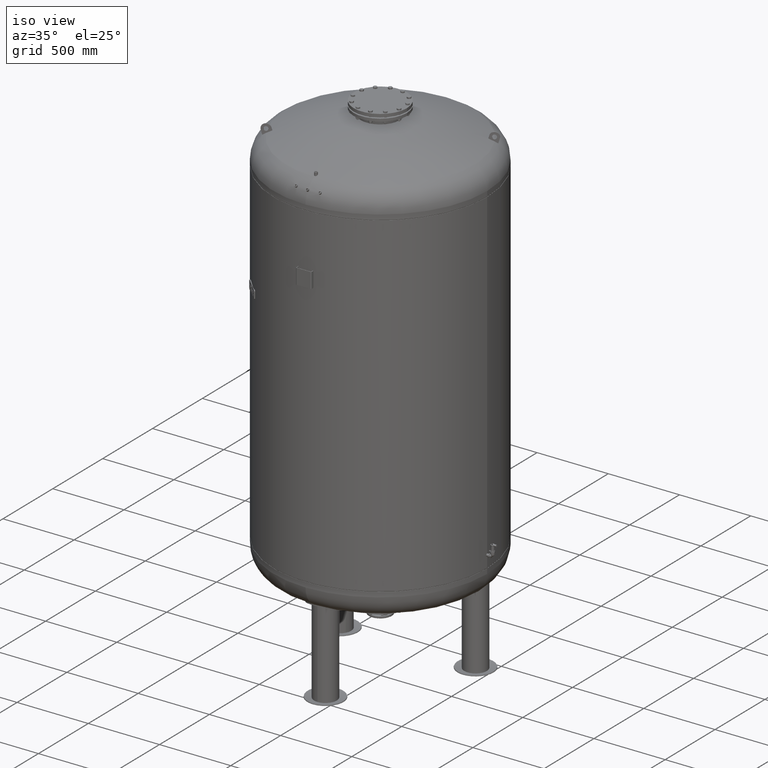
[diagram: clean part render]
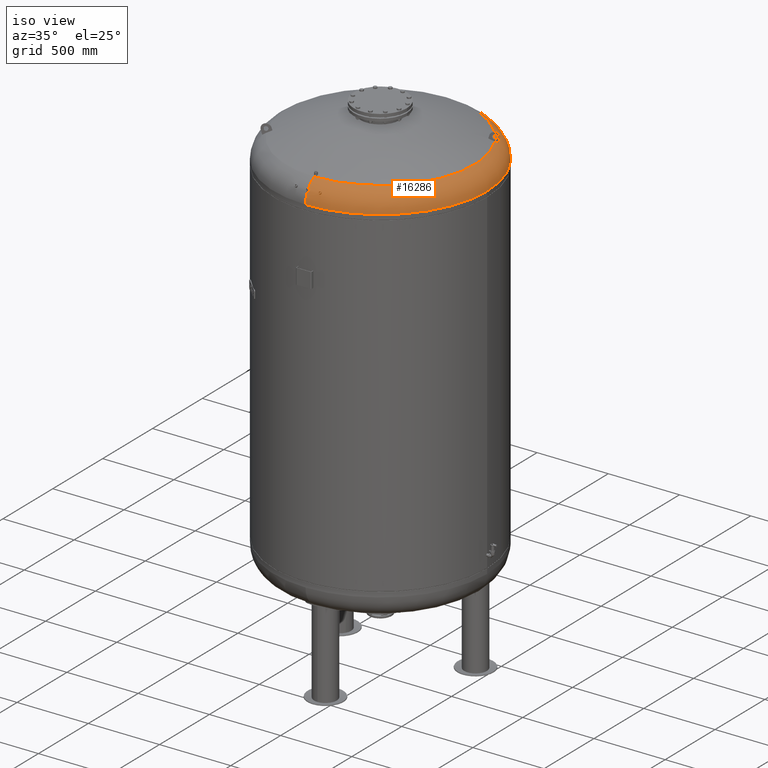
[diagram: same view with one face highlighted and labeled with its STEP entity id]
A machine part, iso view. The second image highlights one B-rep face of the part: STEP entity #16286.
In plain terms, the highlighted toroidal blend (fillet) surface has major radius 591 mm and minor (blend) radius 159 mm.
Its self-contained STEP definition (entity closure, byte-faithful):
#15197=CARTESIAN_POINT('',(3.122770E-014,-731.140193061976330,3288.873758403027800));
#15198=VERTEX_POINT('',#15197);
#15214=CARTESIAN_POINT('',(-4.552190E-014,-721.312989634743420,3304.864059968686900));
#15215=VERTEX_POINT('',#15214);
#15392=CARTESIAN_POINT('',(80.324619526775507,-725.631664467896030,3290.848132170746300));
#15393=VERTEX_POINT('',#15392);
#15409=CARTESIAN_POINT('',(85.635383923202426,-715.574285877654120,3305.762554782133100));
#15410=VERTEX_POINT('',#15409);
#15417=CARTESIAN_POINT('',(82.418225282518961,-715.625413797499390,3306.218126071017700));
#15418=VERTEX_POINT('',#15417);
#15419=CARTESIAN_POINT('',(85.635383923202426,-715.574285877654120,3305.762554782133100));
#15420=CARTESIAN_POINT('',(84.592095150121978,-715.479768309782000,3306.069582553987900));
#15421=CARTESIAN_POINT('',(83.502717674649233,-715.496735823227250,3306.223376532035200));
#15422=CARTESIAN_POINT('',(82.418225282518975,-715.625413797499500,3306.218126071017200));
#15423=B_SPLINE_CURVE_WITH_KNOTS('',3,(#15419,#15420,#15421,#15422),.UNSPECIFIED.,.F.,.U.,(4,4),(55.416614716824512,58.692951700855467),.UNSPECIFIED.);
#15424=EDGE_CURVE('',#15410,#15418,#15423,.T.);
#15426=CARTESIAN_POINT('',(82.418225282518961,-715.625413797499390,3306.218126071017200));
#15427=CARTESIAN_POINT('',(81.211133854247237,-715.768638481119750,3306.212282059076600));
#15428=CARTESIAN_POINT('',(80.033329142601900,-716.047532308479730,3306.009588538828200));
#15429=CARTESIAN_POINT('',(77.853673223190242,-716.844704672272770,3305.227415632584800));
#15430=CARTESIAN_POINT('',(76.876746910767665,-717.358082565862220,3304.650377868647400));
#15431=CARTESIAN_POINT('',(75.331081534016363,-718.495059648504930,3303.244562110200600));
#15432=CARTESIAN_POINT('',(74.751283283861014,-719.098150574058420,3302.448759468116400));
#15433=CARTESIAN_POINT('',(74.001691080207181,-720.301731486084010,3300.757779434901700));
#15434=CARTESIAN_POINT('',(73.810291241882453,-720.890668086018310,3299.885934186303500));
#15435=CARTESIAN_POINT('',(73.779981261854303,-722.027310048809680,3298.109997290660900));
#15436=CARTESIAN_POINT('',(73.936507986794140,-722.568132741438150,3297.217941801339300));
#15437=CARTESIAN_POINT('',(74.606133414307180,-723.598107309736970,3295.419907378629400));
#15438=CARTESIAN_POINT('',(75.141752945350873,-724.072117933369780,3294.531807235835000));
#15439=CARTESIAN_POINT('',(76.601439139230166,-724.890507929086990,3292.872002348968600));
#15440=CARTESIAN_POINT('',(77.541017307508142,-725.212857365886750,3292.132453735247100));
#15441=CARTESIAN_POINT('',(79.156540886265830,-725.520417990257780,3291.277320264957300));
#15442=CARTESIAN_POINT('',(79.731089469051867,-725.592267128844470,3291.036580947696600));
#15443=CARTESIAN_POINT('',(80.324619526775507,-725.631664467896030,3290.848132170746300));
#15444=B_SPLINE_CURVE_WITH_KNOTS('',3,(#15426,#15427,#15428,#15429,#15430,#15431,#15432,#15433,#15434,#15435,#15436,#15437,#15438,#15439,#15440,#15441,#15442,#15443),.UNSPECIFIED.,.F.,.U.,(4,2,2,2,2,2,2,2,4),(0.0,3.646718334081638,7.346398987803632,10.780619860109260,13.964018717005052,17.104140581734100,20.494714130028250,24.174081569606379,26.055942591926314),.UNSPECIFIED.);
#15445=EDGE_CURVE('',#15418,#15393,#15444,.T.);
#15983=CARTESIAN_POINT('',(750.0,-5.423428E-014,3213.762332584101800));
#15984=VERTEX_POINT('',#15983);
#16008=CARTESIAN_POINT('',(1.267436E-013,750.0,3213.762332584101800));
#16009=VERTEX_POINT('',#16008);
#16017=CARTESIAN_POINT('',(1.459986E-014,-5.423428E-014,3213.762332584101800));
#16018=DIRECTION('',(0.0,0.0,-1.0));
#16019=DIRECTION('',(1.0,0.0,0.0));
#16020=AXIS2_PLACEMENT_3D('',#16017,#16018,#16019);
#16021=CIRCLE('',#16020,750.0);
#16022=EDGE_CURVE('',#16009,#15984,#16021,.T.);
#16132=CARTESIAN_POINT('',(3.489809E-014,-5.423428E-014,3213.762332584101800));
#16133=DIRECTION('',(4.945121E-017,-1.836970E-016,-1.0));
#16134=DIRECTION('',(0.0,-1.0,0.0));
#16135=AXIS2_PLACEMENT_3D('',#16132,#16133,#16134);
#16136=TOROIDAL_SURFACE('',#16135,591.0,159.0);
#16137=CARTESIAN_POINT('',(3.489809E-014,-750.0,3213.762332584101800));
#16138=VERTEX_POINT('',#16137);
#16139=CARTESIAN_POINT('',(3.489809E-014,-591.0,3213.762332584101800));
#16140=DIRECTION('',(-1.0,0.0,0.0));
#16141=DIRECTION('',(0.0,-1.0,0.0));
#16142=AXIS2_PLACEMENT_3D('',#16139,#16140,#16141);
#16143=CIRCLE('',#16142,159.0);
#16144=EDGE_CURVE('',#16138,#15198,#16143,.T.);
#16145=ORIENTED_EDGE('',*,*,#16144,.F.);
#16146=CARTESIAN_POINT('',(1.459986E-014,-5.423428E-014,3213.762332584101800));
#16147=DIRECTION('',(0.0,0.0,-1.0));
#16148=DIRECTION('',(1.0,0.0,0.0));
#16149=AXIS2_PLACEMENT_3D('',#16146,#16147,#16148);
#16150=CIRCLE('',#16149,750.0);
#16151=EDGE_CURVE('',#15984,#16138,#16150,.T.);
#16152=ORIENTED_EDGE('',*,*,#16151,.F.);
#16153=ORIENTED_EDGE('',*,*,#16022,.F.);
#16154=CARTESIAN_POINT('',(1.087271E-013,660.606666666666800,3356.716562866229200));
#16155=VERTEX_POINT('',#16154);
#16156=CARTESIAN_POINT('',(1.072723E-013,591.0,3213.762332584101800));
#16157=DIRECTION('',(1.0,0.0,0.0));
#16158=DIRECTION('',(0.0,1.0,0.0));
#16159=AXIS2_PLACEMENT_3D('',#16156,#16157,#16158);
#16160=CIRCLE('',#16159,159.0);
#16161=EDGE_CURVE('',#16009,#16155,#16160,.T.);
#16162=ORIENTED_EDGE('',*,*,#16161,.T.);
#16163=CARTESIAN_POINT('',(570.596255916202270,332.898003566943030,3356.716562866229200));
#16164=VERTEX_POINT('',#16163);
#16165=CARTESIAN_POINT('',(7.530601E-015,-2.797401E-014,3356.716562866229200));
#16166=DIRECTION('',(0.0,0.0,-1.0));
#16167=DIRECTION('',(1.0,0.0,0.0));
#16168=AXIS2_PLACEMENT_3D('',#16165,#16166,#16167);
#16169=CIRCLE('',#16168,660.606666666666800);
#16170=EDGE_CURVE('',#16155,#16164,#16169,.T.);
#16171=ORIENTED_EDGE('',*,*,#16170,.T.);
#16172=CARTESIAN_POINT('',(588.588482349337030,343.285820341434260,3344.575471650438900));
#16173=VERTEX_POINT('',#16172);
#16174=CARTESIAN_POINT('',(570.596255916202270,332.898003566943030,3356.716562866229200));
#16175=CARTESIAN_POINT('',(572.054041405254220,333.739656411467930,3355.896943261032400));
#16176=CARTESIAN_POINT('',(573.514867502697370,334.583064752065810,3355.038760350182700));
#16177=CARTESIAN_POINT('',(576.976511612975400,336.581645910973690,3352.912932457119000));
#16178=CARTESIAN_POINT('',(578.974781685762880,337.735347675411160,3351.612126014599200));
#16179=CARTESIAN_POINT('',(582.931774475123920,340.019918527530190,3348.881544856047600));
#16180=CARTESIAN_POINT('',(584.890496100696050,341.150786985321820,3347.451768031998700));
#16181=CARTESIAN_POINT('',(587.410277309621960,342.605583344594150,3345.507652363015000));
#16182=CARTESIAN_POINT('',(588.001091399301120,342.946690018311470,3345.044094471851200));
#16183=CARTESIAN_POINT('',(588.588482349337030,343.285820341434260,3344.575471650438900));
#16184=B_SPLINE_CURVE_WITH_KNOTS('',3,(#16174,#16175,#16176,#16177,#16178,#16179,#16180,#16181,#16182,#16183),.UNSPECIFIED.,.F.,.U.,(4,2,2,2,4),(774.656358350488740,780.010685689572260,787.369273058092740,794.727860426613230,796.996990205935960),.UNSPECIFIED.);
#16185=EDGE_CURVE('',#16164,#16173,#16184,.T.);
#16186=ORIENTED_EDGE('',*,*,#16185,.T.);
#16187=CARTESIAN_POINT('',(591.588482349336690,338.089667918727570,3344.575471650438900));
#16188=VERTEX_POINT('',#16187);
#16189=CARTESIAN_POINT('',(588.588482349337030,343.285820341434260,3344.575471650438900));
#16190=CARTESIAN_POINT('',(589.090111222559810,342.418391231101340,3344.578030124753200));
#16191=CARTESIAN_POINT('',(589.590425441357980,341.552525995023070,3344.579301453786200));
#16192=CARTESIAN_POINT('',(590.089401200233620,340.688274628905390,3344.579301453786200));
#16193=CARTESIAN_POINT('',(590.588376959112570,339.824023262781680,3344.579301453786200));
#16194=CARTESIAN_POINT('',(591.088081140414260,338.957805821382750,3344.578030124753200));
#16195=CARTESIAN_POINT('',(591.588482349336690,338.089667918727570,3344.575471650438900));
#16196=B_SPLINE_CURVE_WITH_KNOTS('',3,(#16189,#16190,#16191,#16192,#16193,#16194,#16195),.UNSPECIFIED.,.F.,.U.,(4,3,4),(-2.993854553253430,0.0,2.993854553273963),.UNSPECIFIED.);
#16197=EDGE_CURVE('',#16173,#16188,#16196,.T.);
#16198=ORIENTED_EDGE('',*,*,#16197,.T.);
#16199=CARTESIAN_POINT('',(573.596255916202270,327.701851144236400,3356.716562866229200));
#16200=VERTEX_POINT('',#16199);
#16201=CARTESIAN_POINT('',(591.588482349336690,338.089667918727570,3344.575471650438900));
#16202=CARTESIAN_POINT('',(591.001034993602270,337.750505029759610,3345.044139472540300));
#16203=CARTESIAN_POINT('',(590.410163811151510,337.409365393515030,3345.507741414689900));
#16204=CARTESIAN_POINT('',(587.890327860486420,335.954537429084780,3347.451893026950100));
#16205=CARTESIAN_POINT('',(585.931609407500670,334.823670802986780,3348.881663004374300));
#16206=CARTESIAN_POINT('',(581.974623379374860,332.539103854468750,3351.612231014925300));
#16207=CARTESIAN_POINT('',(579.976356895234860,331.385404161938030,3352.913031156073000));
#16208=CARTESIAN_POINT('',(576.514766784393940,329.386854179619720,3355.038819520509200));
#16209=CARTESIAN_POINT('',(575.053991207979040,328.543475007350930,3355.896971483751700));
#16210=CARTESIAN_POINT('',(573.596255916202270,327.701851144236400,3356.716562866229200));
#16211=B_SPLINE_CURVE_WITH_KNOTS('',3,(#16201,#16202,#16203,#16204,#16205,#16206,#16207,#16208,#16209,#16210),.UNSPECIFIED.,.F.,.U.,(4,2,2,2,4),(144.901644365231360,147.170992146182750,154.529560626149700,161.888129106116650,167.242268222433860),.UNSPECIFIED.);
#16212=EDGE_CURVE('',#16188,#16200,#16211,.T.);
#16213=ORIENTED_EDGE('',*,*,#16212,.T.);
#16214=CARTESIAN_POINT('',(2.782883E-014,-660.606666666666800,3356.716562866229200));
#16215=VERTEX_POINT('',#16214);
#16216=CARTESIAN_POINT('',(7.530601E-015,-2.797401E-014,3356.716562866229200));
#16217=DIRECTION('',(0.0,0.0,-1.0));
#16218=DIRECTION('',(1.0,0.0,0.0));
#16219=AXIS2_PLACEMENT_3D('',#16216,#16217,#16218);
#16220=CIRCLE('',#16219,660.606666666666800);
#16221=EDGE_CURVE('',#16200,#16215,#16220,.T.);
#16222=ORIENTED_EDGE('',*,*,#16221,.T.);
#16223=CARTESIAN_POINT('',(3.489809E-014,-591.0,3213.762332584101800));
#16224=DIRECTION('',(-1.0,0.0,0.0));
#16225=DIRECTION('',(0.0,-1.0,0.0));
#16226=AXIS2_PLACEMENT_3D('',#16223,#16224,#16225);
#16227=CIRCLE('',#16226,159.0);
#16228=EDGE_CURVE('',#15215,#16215,#16227,.T.);
#16229=ORIENTED_EDGE('',*,*,#16228,.F.);
#16230=CARTESIAN_POINT('',(3.122770E-014,-731.140193061976330,3288.873758403027800));
#16231=CARTESIAN_POINT('',(0.057657512681151,-731.140193061976330,3288.873758403027800));
#16232=CARTESIAN_POINT('',(0.115342753390980,-731.139926967138310,3288.874242153138800));
#16233=CARTESIAN_POINT('',(1.370994247352646,-731.128329676279690,3288.895324945747700));
#16234=CARTESIAN_POINT('',(2.550696905113760,-731.002856720951400,3289.124223991328600));
#16235=CARTESIAN_POINT('',(4.770670746990790,-730.529672242895230,3289.976538361409400));
#16236=CARTESIAN_POINT('',(5.782788601115631,-730.181846701405220,3290.599552452901700));
#16237=CARTESIAN_POINT('',(7.415153016316103,-729.334644906491580,3292.087861202894600));
#16238=CARTESIAN_POINT('',(8.045293616802772,-728.854350355824180,3292.920827512777600));
#16239=CARTESIAN_POINT('',(8.853711341418409,-727.888611831786310,3294.561568614542000));
#16240=CARTESIAN_POINT('',(9.090142437814508,-727.425103557546320,3295.337726622414700));
#16241=CARTESIAN_POINT('',(9.287260539900800,-726.499770309923410,3296.861439544907600));
#16242=CARTESIAN_POINT('',(9.265074449871836,-726.043949167648980,3297.600840282085300));
#16243=CARTESIAN_POINT('',(8.973568366567891,-725.098956888440510,3299.111280096082300));
#16244=CARTESIAN_POINT('',(8.684213468884783,-724.615488560750800,3299.871207435359800));
#16245=CARTESIAN_POINT('',(7.734947452341693,-723.579974660486760,3301.476551918206000));
#16246=CARTESIAN_POINT('',(7.005487491290436,-723.054006829728910,3302.275343219548200));
#16247=CARTESIAN_POINT('',(5.260316547378206,-722.194279083278270,3303.566272979116500));
#16248=CARTESIAN_POINT('',(4.273464259762934,-721.861372702501280,3304.058282219715200));
#16249=CARTESIAN_POINT('',(2.177841876065024,-721.423439426855790,3304.703004258363800));
#16250=CARTESIAN_POINT('',(1.093419321610635,-721.312989634743420,3304.864059968686900));
#16251=CARTESIAN_POINT('',(-4.552190E-014,-721.312989634743420,3304.864059968686900));
#16252=B_SPLINE_CURVE_WITH_KNOTS('',3,(#16230,#16231,#16232,#16233,#16234,#16235,#16236,#16237,#16238,#16239,#16240,#16241,#16242,#16243,#16244,#16245,#16246,#16247,#16248,#16249,#16250,#16251),.UNSPECIFIED.,.F.,.U.,(4,2,2,2,2,2,2,2,2,2,4),(29.349581211693941,29.522750813462714,33.117678586733895,36.796643350888004,40.213686568299714,42.999161385988110,45.591792753847557,48.412890025641090,51.989047296465195,55.416142810113719,58.696400774945758),.UNSPECIFIED.);
#16253=EDGE_CURVE('',#15198,#15215,#16252,.T.);
#16254=ORIENTED_EDGE('',*,*,#16253,.F.);
#16255=EDGE_LOOP('',(#16145,#16152,#16153,#16162,#16171,#16186,#16198,#16213,#16222,#16229,#16254));
#16256=FACE_OUTER_BOUND('',#16255,.T.);
#16257=ORIENTED_EDGE('',*,*,#15445,.F.);
#16258=ORIENTED_EDGE('',*,*,#15424,.F.);
#16259=CARTESIAN_POINT('',(80.324619526775507,-725.631664467896030,3290.848132170746300));
#16260=CARTESIAN_POINT('',(80.836460813527964,-725.665639469586950,3290.685619989221300));
#16261=CARTESIAN_POINT('',(81.362417253469602,-725.675480591470200,3290.561992093079000));
#16262=CARTESIAN_POINT('',(83.062595083519128,-725.629091237117220,3290.299545290247800));
#16263=CARTESIAN_POINT('',(84.242931271470894,-725.482021757286820,3290.319509486723300));
#16264=CARTESIAN_POINT('',(86.545978748615113,-724.966368683784370,3290.759955149510900));
#16265=CARTESIAN_POINT('',(87.640103965526961,-724.595955389998840,3291.189179440340500));
#16266=CARTESIAN_POINT('',(89.581750827765489,-723.664339173513440,3292.412310408740300));
#16267=CARTESIAN_POINT('',(90.402628841048255,-723.106743522768740,3293.204290530698900));
#16268=CARTESIAN_POINT('',(91.562543574441378,-721.939721271351570,3294.933840794016800));
#16269=CARTESIAN_POINT('',(91.933383796096422,-721.348859336639290,3295.837106947663000));
#16270=CARTESIAN_POINT('',(92.265952949030478,-720.190800092448060,3297.644681446001000));
#16271=CARTESIAN_POINT('',(92.255866627002987,-719.632500626479900,3298.532151413802700));
#16272=CARTESIAN_POINT('',(91.890567198759328,-718.547645037983220,3300.287955497912700));
#16273=CARTESIAN_POINT('',(91.533337545003462,-718.029339697865450,3301.143408301554200));
#16274=CARTESIAN_POINT('',(90.438103113286189,-717.043111928540500,3302.818383407302500));
#16275=CARTESIAN_POINT('',(89.671533450964276,-716.597546969692420,3303.606234845488400));
#16276=CARTESIAN_POINT('',(87.850505110485102,-715.917598072399070,3304.904553216511000));
#16277=CARTESIAN_POINT('',(86.817277463416303,-715.687431608038200,3305.405953136747000));
#16278=CARTESIAN_POINT('',(85.685248681661704,-715.578869416350240,3305.747784706439200));
#16279=CARTESIAN_POINT('',(85.660329484668154,-715.576545840437010,3305.755213593046800));
#16280=CARTESIAN_POINT('',(85.635383923202426,-715.574285877654120,3305.762554782133100));
#16281=B_SPLINE_CURVE_WITH_KNOTS('',3,(#16259,#16260,#16261,#16262,#16263,#16264,#16265,#16266,#16267,#16268,#16269,#16270,#16271,#16272,#16273,#16274,#16275,#16276,#16277,#16278,#16279,#16280),.UNSPECIFIED.,.F.,.U.,(4,2,2,2,2,2,2,2,2,2,4),(26.055942591926314,27.678799184644781,31.219489836587044,34.881426856872338,38.647990749969111,42.039977392704102,45.162054324610359,48.325711079185957,51.853968486547998,55.338275844858657,55.416614716824512),.UNSPECIFIED.);
#16282=EDGE_CURVE('',#15393,#15410,#16281,.T.);
#16283=ORIENTED_EDGE('',*,*,#16282,.F.);
#16284=EDGE_LOOP('',(#16257,#16258,#16283));
#16285=FACE_BOUND('',#16284,.T.);
#16286=ADVANCED_FACE('',(#16256,#16285),#16136,.T.);